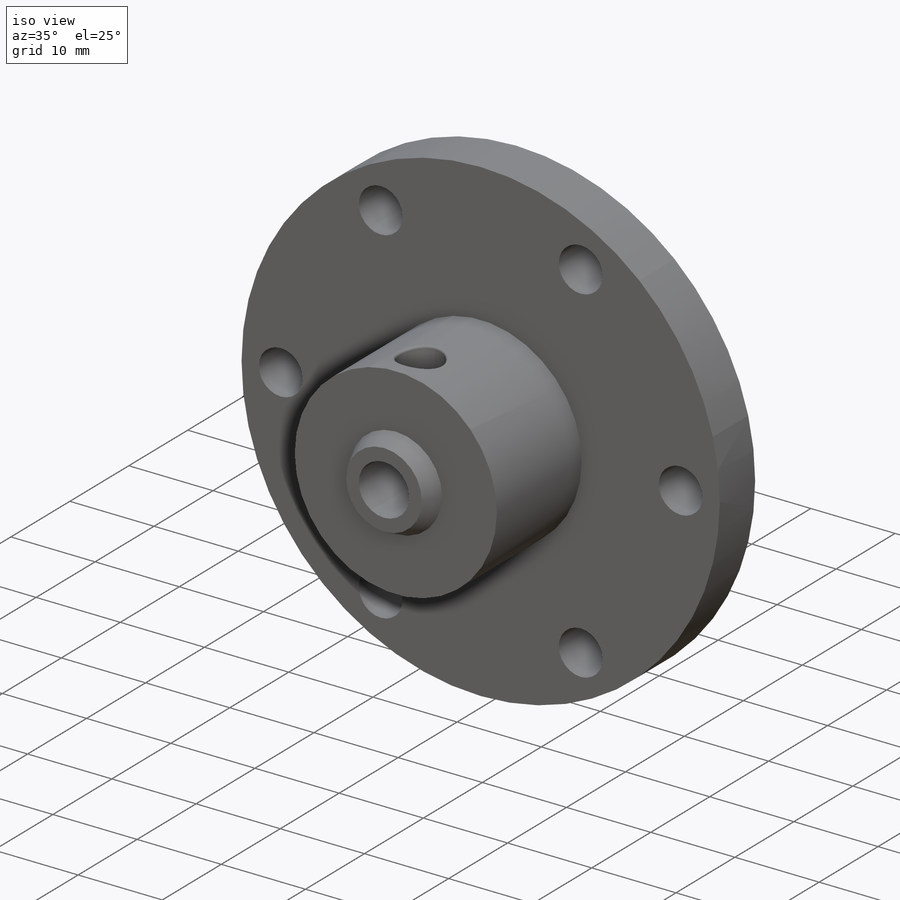
[diagram: iso view]
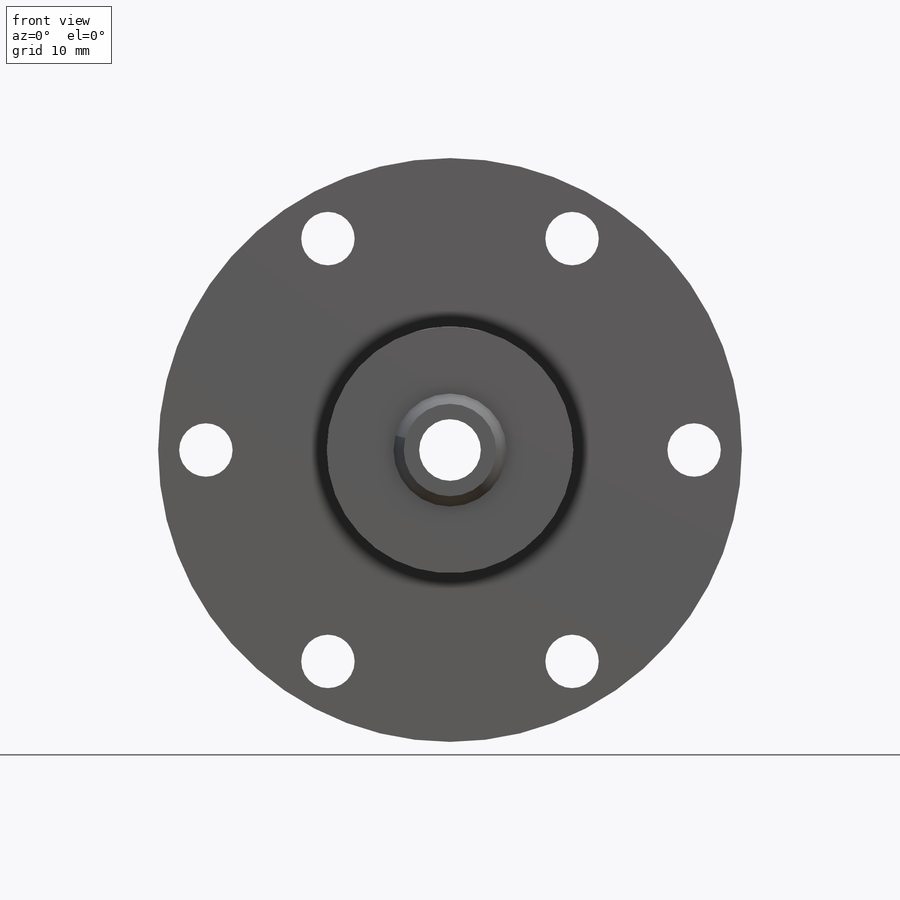
[diagram: front view]
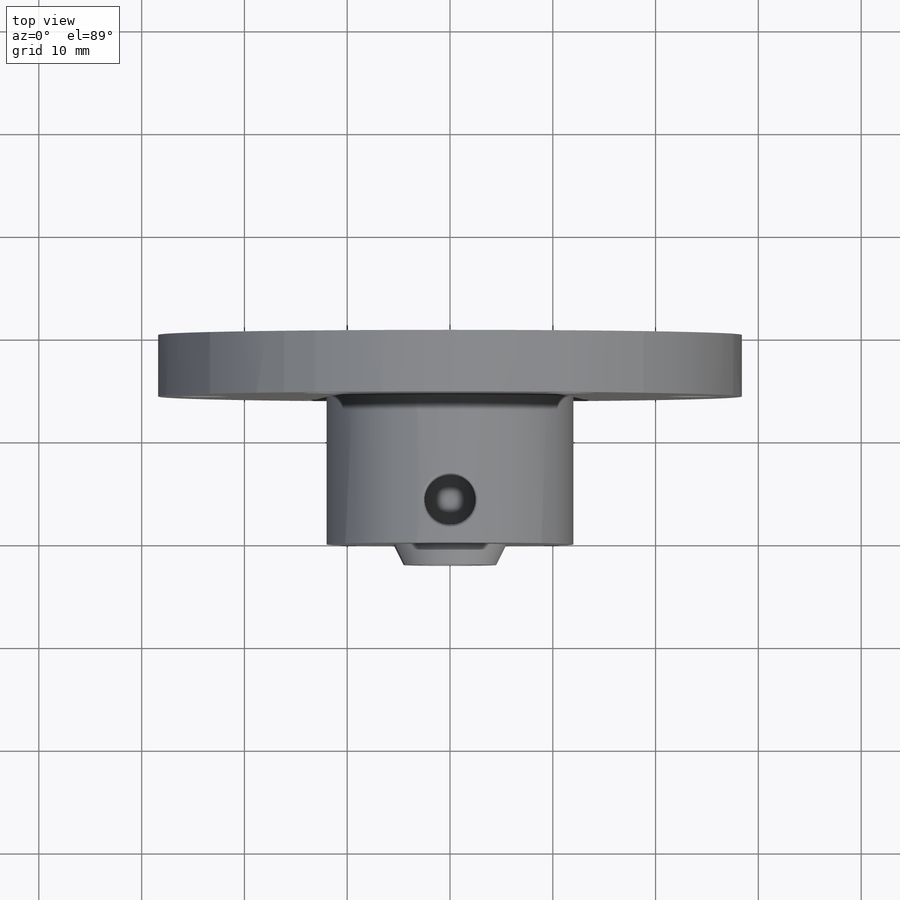
[diagram: top view]
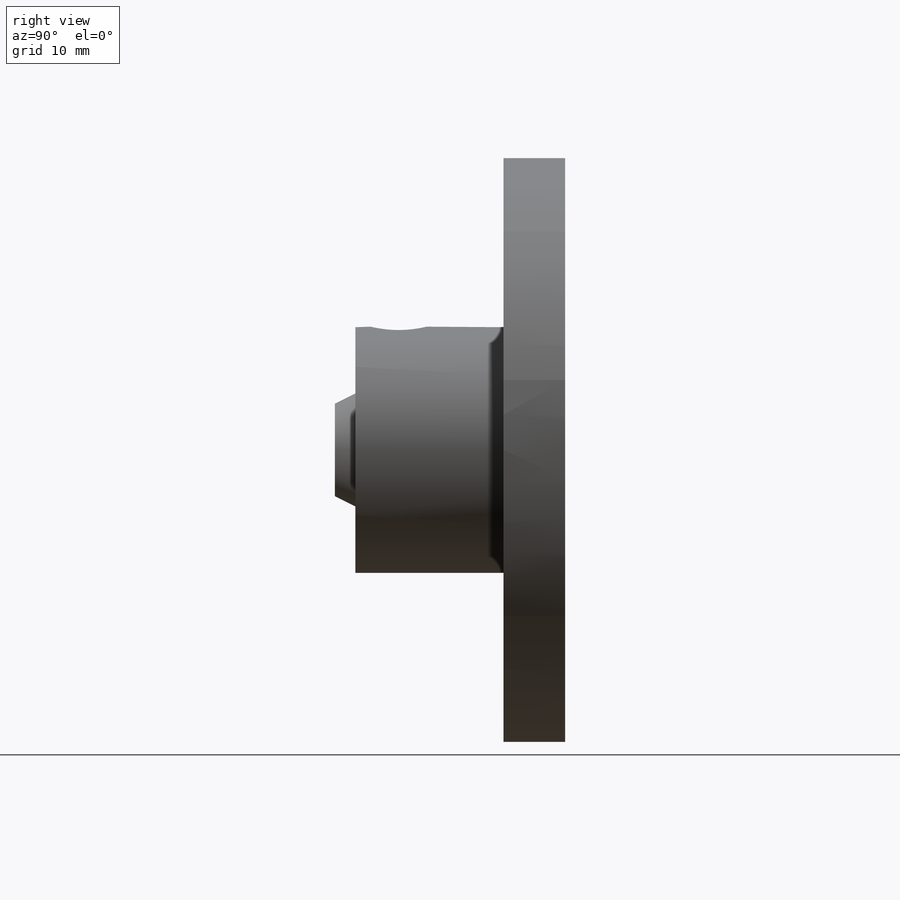
[diagram: right view]
SOLIDWORKS PART (.sldprt)
format: sldprt  version: not decoded by parser v0  size: 238,080 bytes
history: native  units: mm
features: sketch x6, cut_extrude x3, extrude x2, material x1, fillet x1, cut_revolve x1 (+11 scaffold rows collapsed)
feature tree (25):
  scaffold x11  (default folders/planes/origin — collapsed)
  material  "1060 Alloy"
  sketch  "Sketch1"  dims[D1=56.8mm]
  extrude  "Boss-Extrude1"  Depth=6mm
  sketch  "Sketch2"  dims[D1=47.5mm D2=5.2mm D3=6.0]
  cut_extrude  "Cut-Extrude1"  [1 undecoded]
  sketch  "Sketch3"  dims[D1=24.0mm]
  extrude  "Boss-Extrude2"  Depth=16.4mm
  sketch  "Sketch4"  dims[D1=6.0mm]
  cut_extrude  "Cut-Extrude2"  [1 undecoded]
  sketch  "Sketch5"  dims[D2=5.0mm D1=6.2mm]
  cut_extrude  "Cut-Extrude3"  Depth=20.4mm
  fillet  "Fillet1"  Radius=0.25mm
  sketch  "Sketch9"  dims[D1=4.5mm D2=5.5mm D3=2.0mm]
  cut_revolve  "Cut-Revolve1"  Angle=360deg
decode coverage: 11 of 13 modeling features carry decoded parameters
note: 2 parameter values undecoded
note: suppression state not decoded; provenance and decode notes live in map.json
